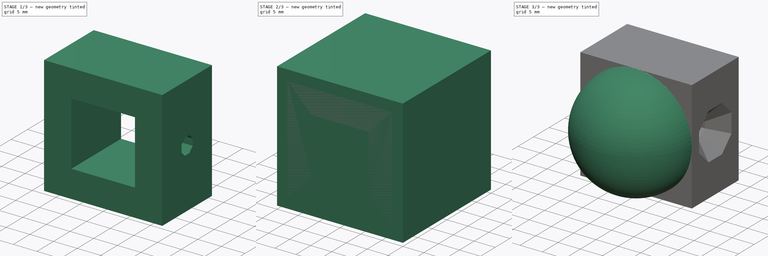
[diagram: build sequence overview — one tinted view per stage of 3, left to right]
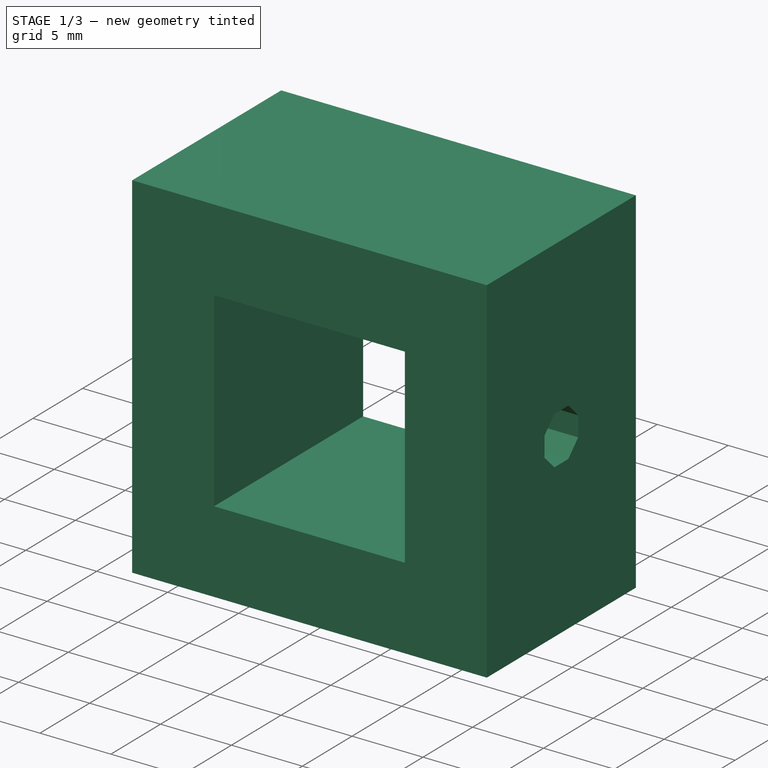
[diagram: stage 1 of 3 — iso view after this stage's code; geometry added in this stage tinted green]
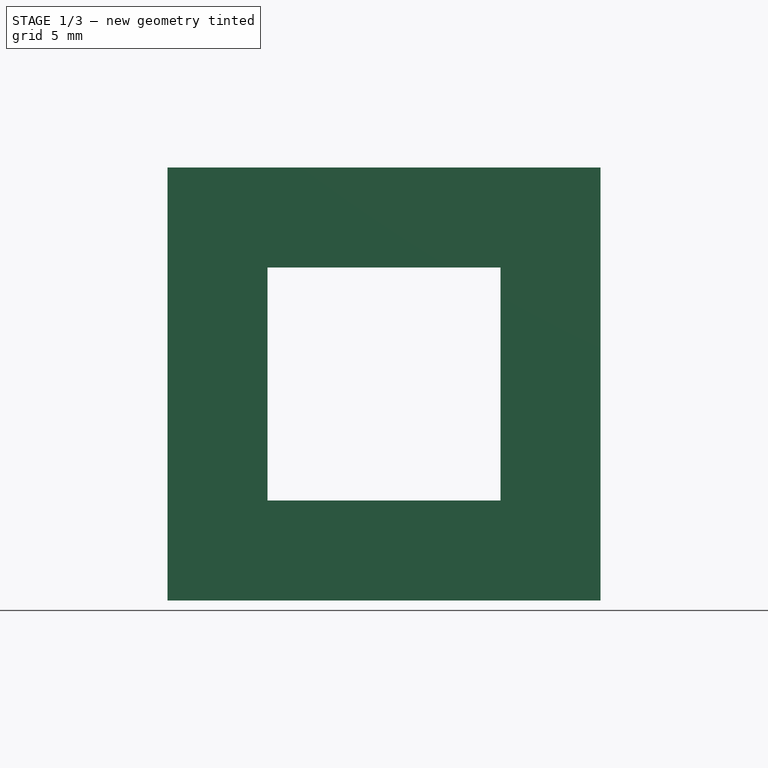
[diagram: stage 1 of 3 — front view after this stage's code; geometry added in this stage tinted green]
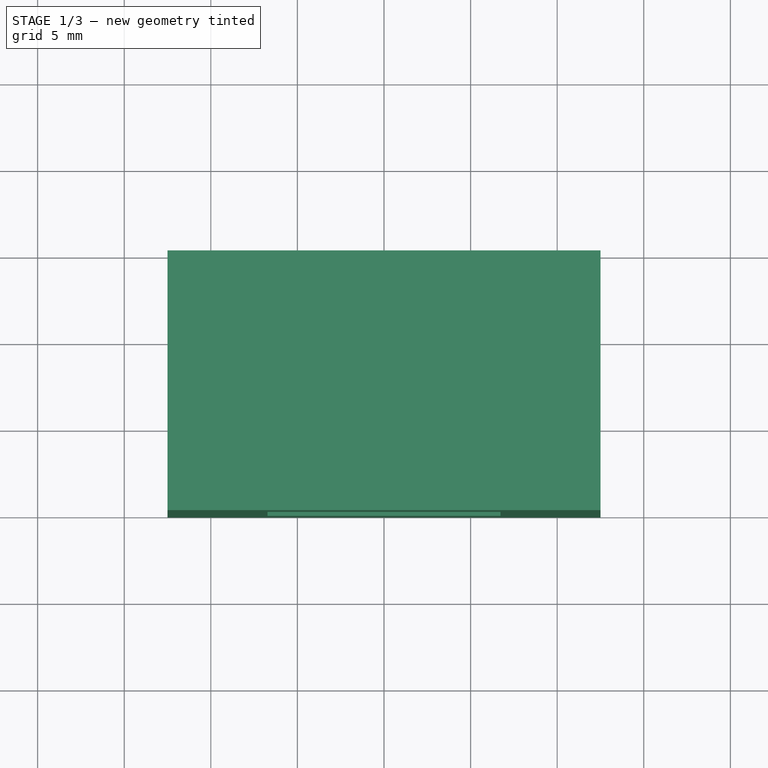
[diagram: stage 1 of 3 — top view after this stage's code; geometry added in this stage tinted green]
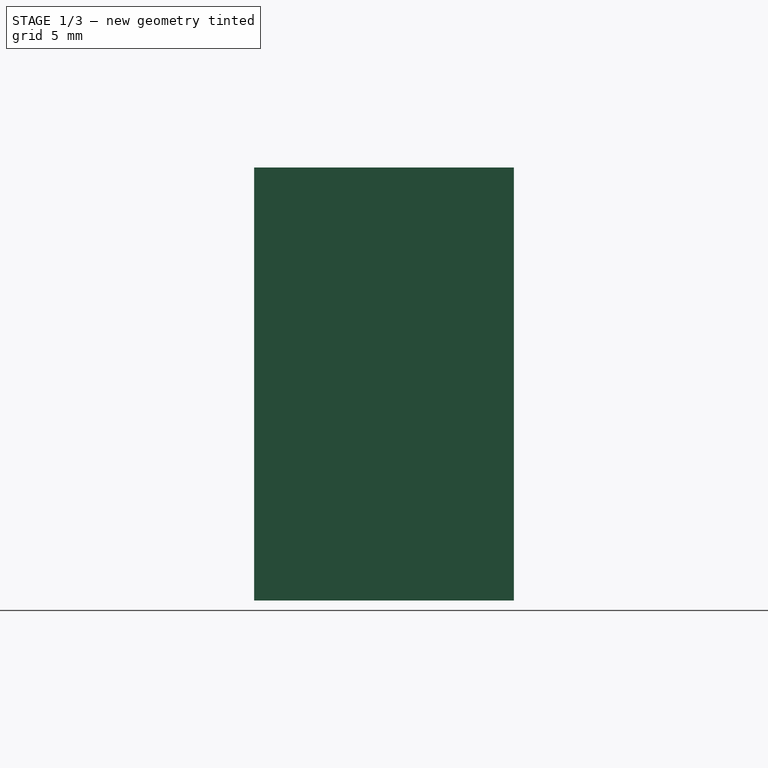
[diagram: stage 1 of 3 — right view after this stage's code; geometry added in this stage tinted green]
FCSTD DOCUMENT  (FreeCAD 0.17R13634 (Git))
Label: FootRounded V2
License: All rights reserved
LicenseURL: http://en.wikipedia.org/wiki/All_rights_reserved
objects: Sketcher::SketchObject×2, Part::Sphere×1, Part::Box×1, Part::Cut×1, PartDesign::Pad×1, PartDesign::Pocket×1, PartDesign::Chamfer×1, PartDesign::Body×1
note: 11 computed .brp shape members not serialized (recipe doc carries the construction recipe); baked Part::Feature solids carry a one-line shape summary decoded from their .brp

FEATURE [Sketcher::SketchObject] Sketch  label="SquareBase"
  MapMode = 5
  Placement = pos=(0,0,0) rot=(1,0,0;1.5708rad)
  Support = -> [XZ_Plane]
  sketch-geometry (8):
    g0: LineSegment StartX=12.5 StartY=-12.5 StartZ=0 EndX=-12.5 EndY=-12.5 EndZ=0
    g1: LineSegment StartX=-12.5 StartY=-12.5 StartZ=0 EndX=-12.5 EndY=12.5 EndZ=0
    g2: LineSegment StartX=-12.5 StartY=12.5 StartZ=0 EndX=12.5 EndY=12.5 EndZ=0
    g3: LineSegment StartX=12.5 StartY=12.5 StartZ=0 EndX=12.5 EndY=-12.5 EndZ=0
    g4: LineSegment StartX=6.725 StartY=6.725 StartZ=0 EndX=-6.725 EndY=6.725 EndZ=0
    g5: LineSegment StartX=-6.725 StartY=6.725 StartZ=0 EndX=-6.725 EndY=-6.725 EndZ=0
    g6: LineSegment StartX=-6.725 StartY=-6.725 StartZ=0 EndX=6.725 EndY=-6.725 EndZ=0
    g7: LineSegment StartX=6.725 StartY=-6.725 StartZ=0 EndX=6.725 EndY=6.725 EndZ=0
  constraints (24):
    c: Coincident(g0,g1)
    c: Coincident(g1,g2)
    c: Coincident(g2,g3)
    c: Coincident(g3,g0)
    c: Horizontal(g0)
    c: Horizontal(g2)
    c: Vertical(g1)
    c: Vertical(g3)
    c: Symmetric(g1,g2,g-2)
    c: Symmetric(g0,g1,g-1)
    c: Equal(g3,g2)
    c: Distance(g3) = 25
    c: Coincident(g4,g5)
    c: Coincident(g5,g6)
    c: Coincident(g6,g7)
    c: Coincident(g7,g4)
    c: Horizontal(g4)
    c: Horizontal(g6)
    c: Vertical(g5)
    c: Vertical(g7)
    c: Symmetric(g5,g6,g-2)
    c: Symmetric(g5,g4,g-1)
    c: Equal(g4,g5)
    c: Distance(g6) = 13.45
FEATURE [PartDesign::Pad] Pad
  Length = 15
  Length2 = 100
  Placement = pos=(0,0,0) rot=(1,0,0;1.5708rad)
  Profile = -> Sketch
  Reversed = true
  Type = 0
FEATURE [Sketcher::SketchObject] Sketch001  label="ScrewOctagon"
  ExternalGeometry = -> [Pad]
  MapMode = 5
  Placement = pos=(12.5,0,0) rot=(0.707107,0,0.707107;3.14159rad)
  Support = -> [Pad]
  sketch-geometry (12):
    g0: LineSegment [constr] StartX=-12.5 StartY=0 StartZ=0 EndX=12.5 EndY=-15 EndZ=0
    g1: LineSegment [constr] StartX=12.5 StartY=0 StartZ=0 EndX=-12.5 EndY=-15 EndZ=0
    g2: GeomPoint X=0 Y=-7.5 Z=0
    g3: LineSegment StartX=1.7 StartY=-8.20416 StartZ=0 EndX=1.7 EndY=-6.79584 EndZ=0
    g4: LineSegment StartX=1.7 StartY=-6.79584 StartZ=0 EndX=0.704163 EndY=-5.8 EndZ=0
    g5: LineSegment StartX=0.704163 StartY=-5.8 StartZ=0 EndX=-0.704163 EndY=-5.8 EndZ=0
    g6: LineSegment StartX=-0.704163 StartY=-5.8 StartZ=0 EndX=-1.7 EndY=-6.79584 EndZ=0
    g7: LineSegment StartX=-1.7 StartY=-6.79584 StartZ=0 EndX=-1.7 EndY=-8.20416 EndZ=0
    g8: LineSegment StartX=-1.7 StartY=-8.20416 StartZ=0 EndX=-0.704163 EndY=-9.2 EndZ=0
    g9: LineSegment StartX=-0.704163 StartY=-9.2 StartZ=0 EndX=0.704163 EndY=-9.2 EndZ=0
    g10: LineSegment StartX=0.704163 StartY=-9.2 StartZ=0 EndX=1.7 EndY=-8.20416 EndZ=0
    g11: Circle [constr] CenterX=0 CenterY=-7.5 CenterZ=0 NormalX=0 NormalY=0 NormalZ=1 AngleXU=0 Radius=1.84007
  constraints (26):
    c: Coincident(g0,g-3)
    c: Coincident(g0,g-4)
    c: Coincident(g1,g-4)
    c: Coincident(g1,g-3)
    c: PointOnObject(g2,g1)
    c: PointOnObject(g2,g0)
    c: Coincident(g3,g4)
    c: Coincident(g4,g5)
    c: Coincident(g5,g6)
    c: Coincident(g6,g7)
    c: Coincident(g7,g8)
    c: Coincident(g8,g9)
    c: Coincident(g9,g10)
    c: Coincident(g10,g3)
    c: Equal(g3, g4-g10) x7
    c: PointOnObject(g3,g11)
    c: PointOnObject(g4,g11)
    c: PointOnObject(g5,g11)
    c: PointOnObject(g6,g11)
    c: PointOnObject(g7,g11)
    c: PointOnObject(g8,g11)
    c: PointOnObject(g9,g11)
    c: PointOnObject(g10,g11)
    c: Coincident(g11,g2)
    c: Horizontal(g5)
    c: Distance(g6,g3) = 3.4
FEATURE [PartDesign::Pocket] Pocket
  BaseFeature = -> Pad
  Length = 6
  Length2 = 100
  Placement = pos=(0,0,0) rot=(1,0,0;1.5708rad)
  Profile = -> Sketch001
  Type = 0
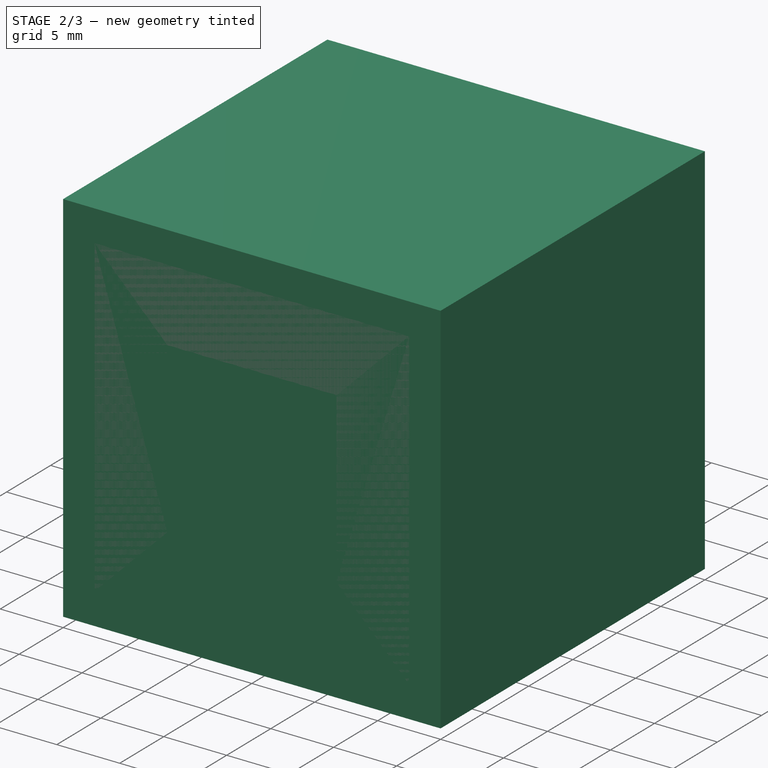
[diagram: stage 2 of 3 — iso view after this stage's code; geometry added in this stage tinted green]
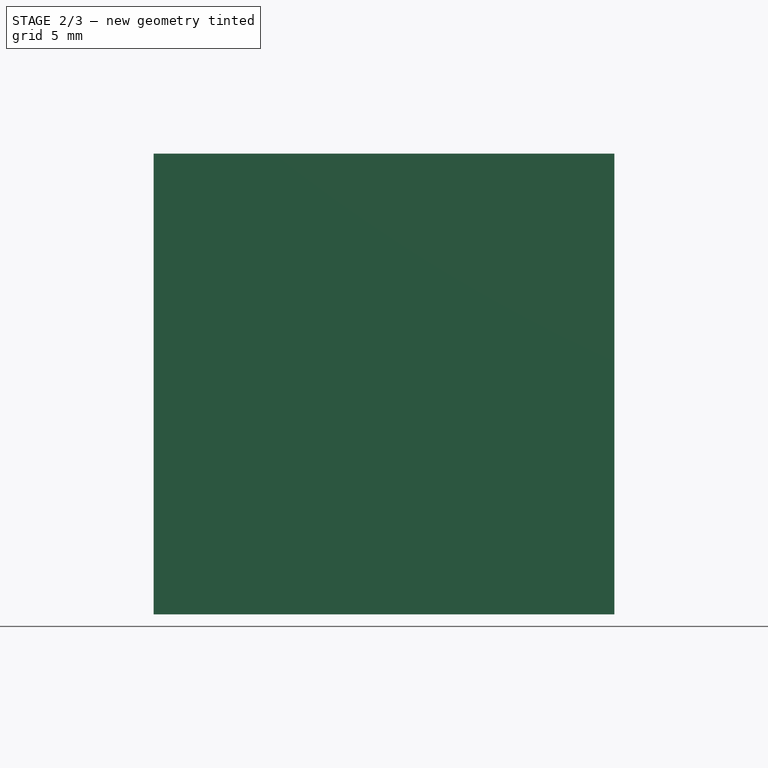
[diagram: stage 2 of 3 — front view after this stage's code; geometry added in this stage tinted green]
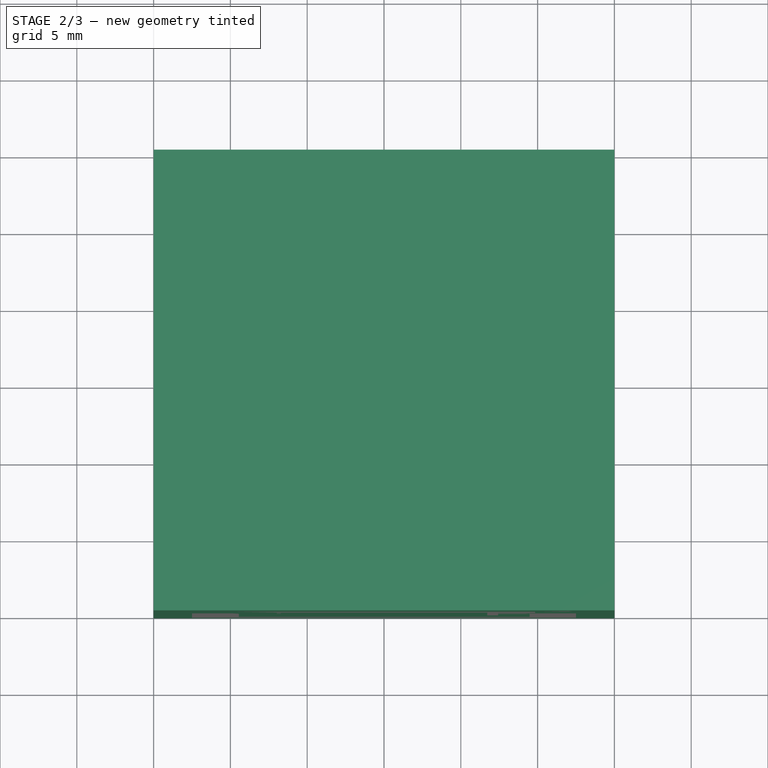
[diagram: stage 2 of 3 — top view after this stage's code; geometry added in this stage tinted green]
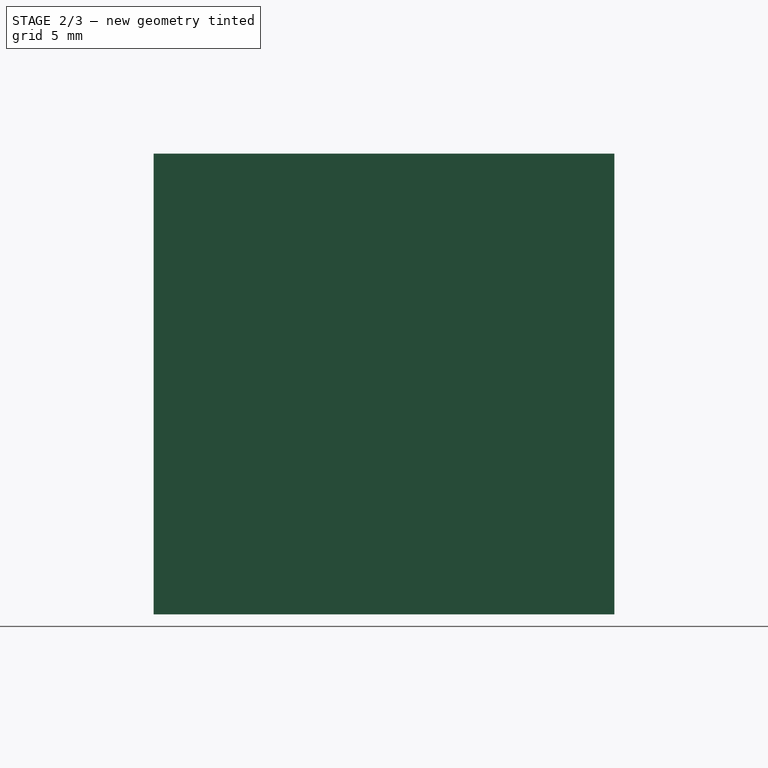
[diagram: stage 2 of 3 — right view after this stage's code; geometry added in this stage tinted green]
FEATURE [Part::Box] Box  label="Cube"
  AttacherType = Attacher::AttachEngine3D
  Height = 30
  Length = 30
  Placement = pos=(-15,0,-15) rot=(0,1,0;0rad)
  Width = 30
FEATURE [PartDesign::Chamfer] Chamfer
  Base = -> Pocket [Edge9,Edge10,Edge11,Edge12,Edge13,Edge14,Edge15,Edge8]
  BaseFeature = -> Pocket
  Placement = pos=(0,0,0) rot=(1,0,0;1.5708rad)
  Size = 3.5
FEATURE [PartDesign::Body] Body
  Group = -> [Sketch,Pad,Sketch001,Pocket,Chamfer]
  Origin = -> Origin
  Tip = -> Chamfer
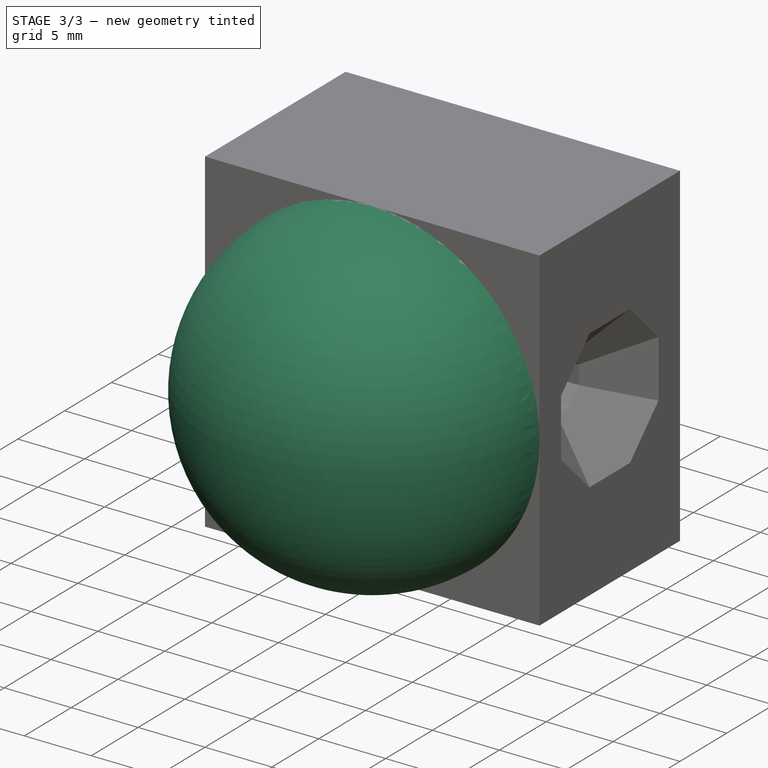
[diagram: stage 3 of 3 — iso view after this stage's code; geometry added in this stage tinted green]
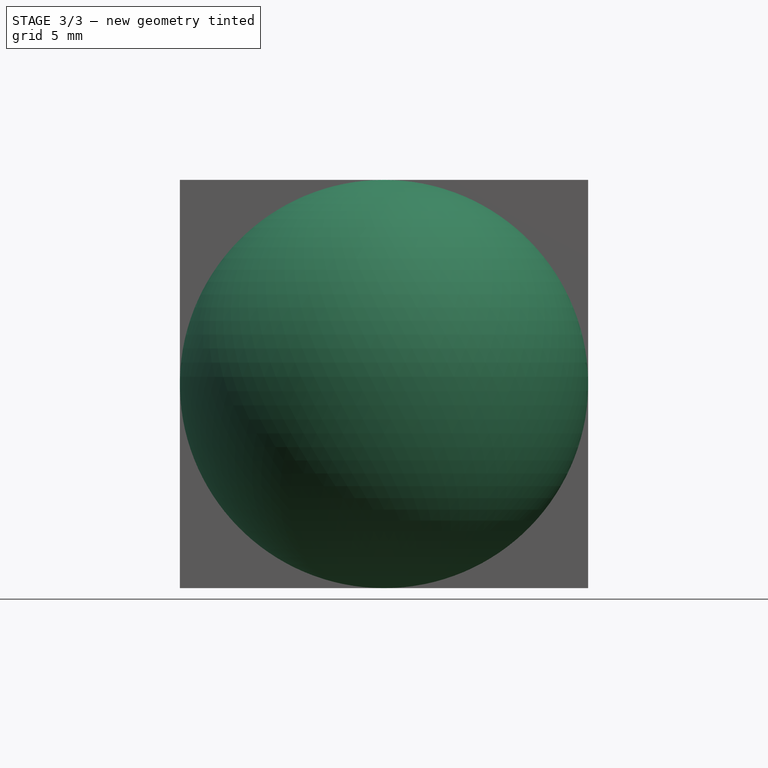
[diagram: stage 3 of 3 — front view after this stage's code; geometry added in this stage tinted green]
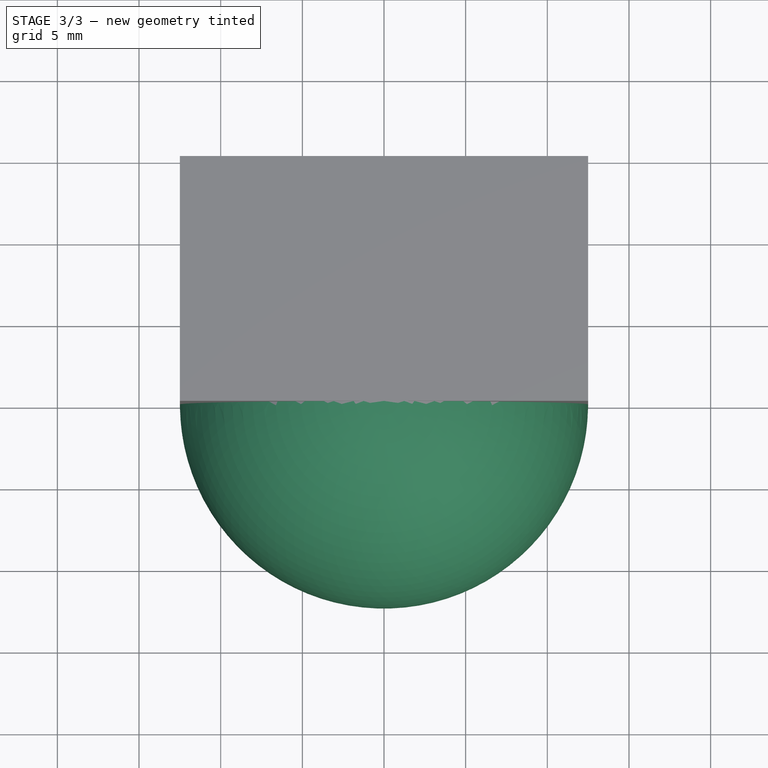
[diagram: stage 3 of 3 — top view after this stage's code; geometry added in this stage tinted green]
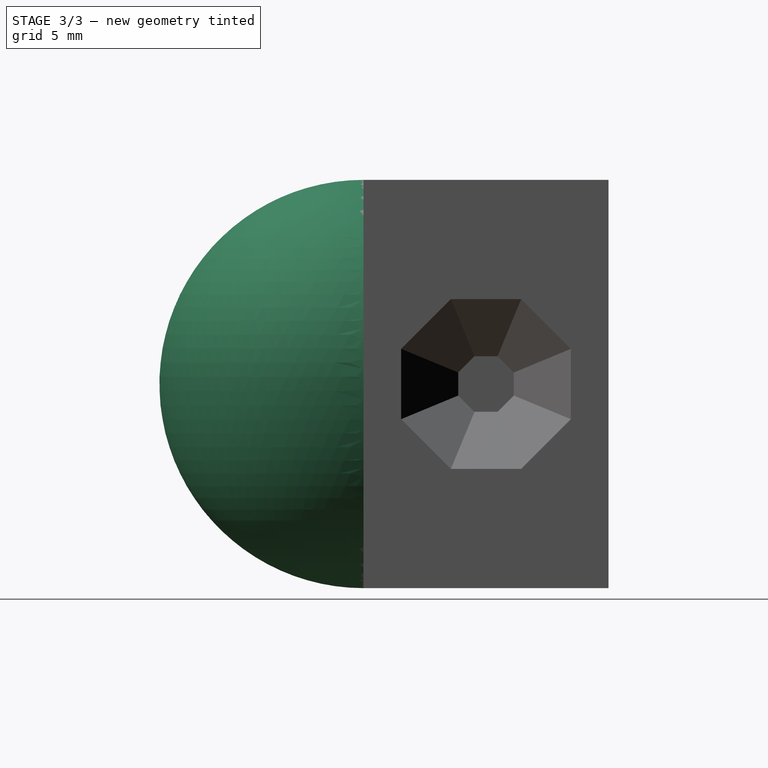
[diagram: stage 3 of 3 — right view after this stage's code; geometry added in this stage tinted green]
FEATURE [Part::Sphere] Sphere
  Angle1 = -90
  Angle2 = 90
  Angle3 = 360
  AttacherType = Attacher::AttachEngine3D
  Radius = 12.5
FEATURE [Part::Cut] Cut
  Base = -> Sphere
  Tool = -> Box
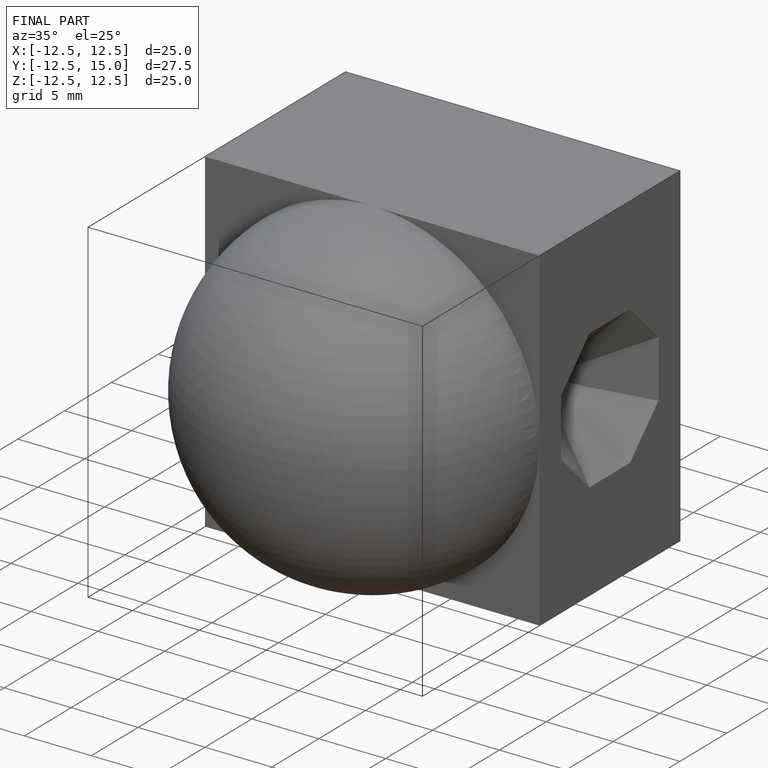
[diagram: finished part — iso view with bounding-box wireframe]
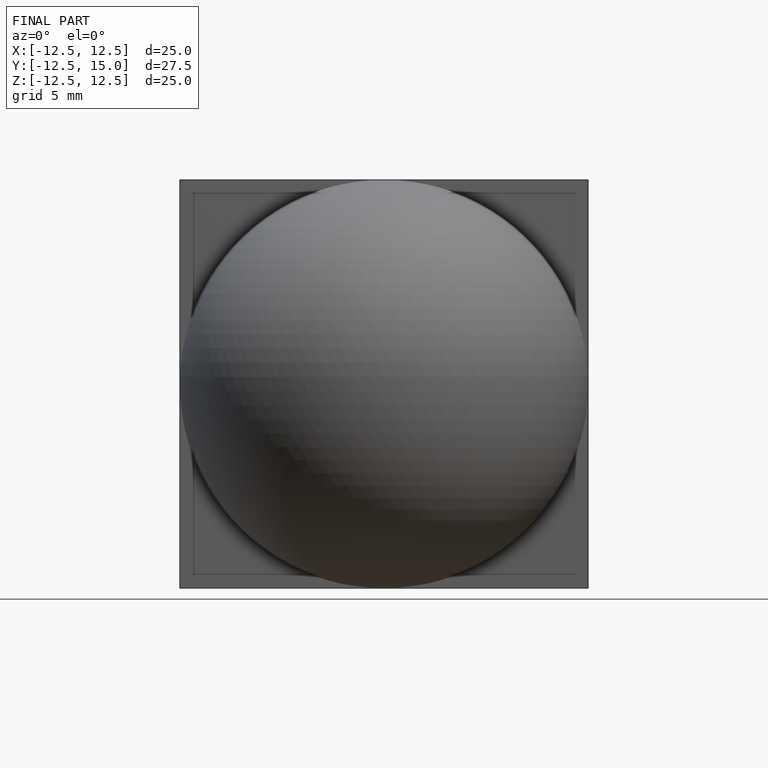
[diagram: finished part — front view with bounding-box wireframe]
